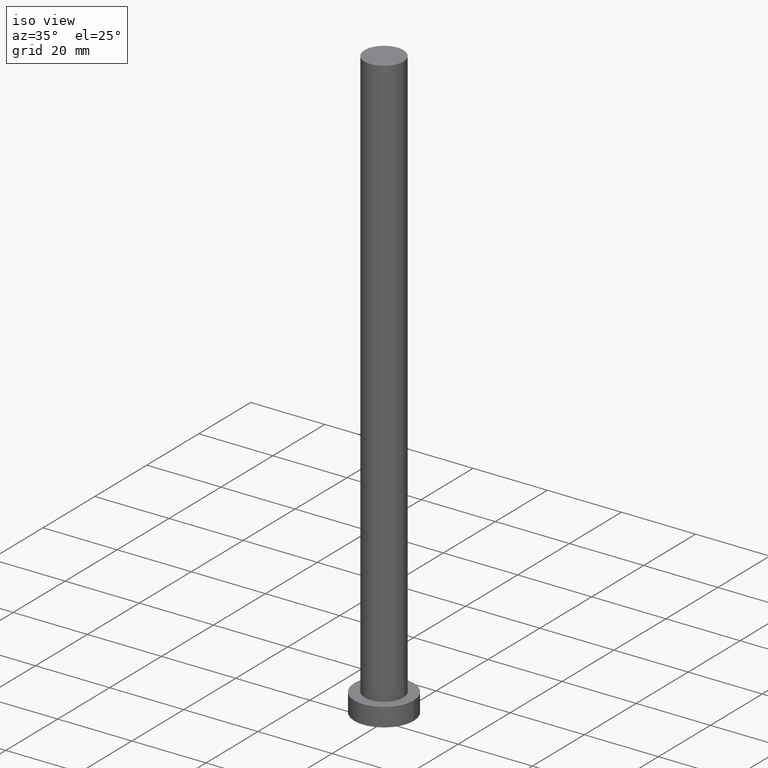
[diagram: clean part render]
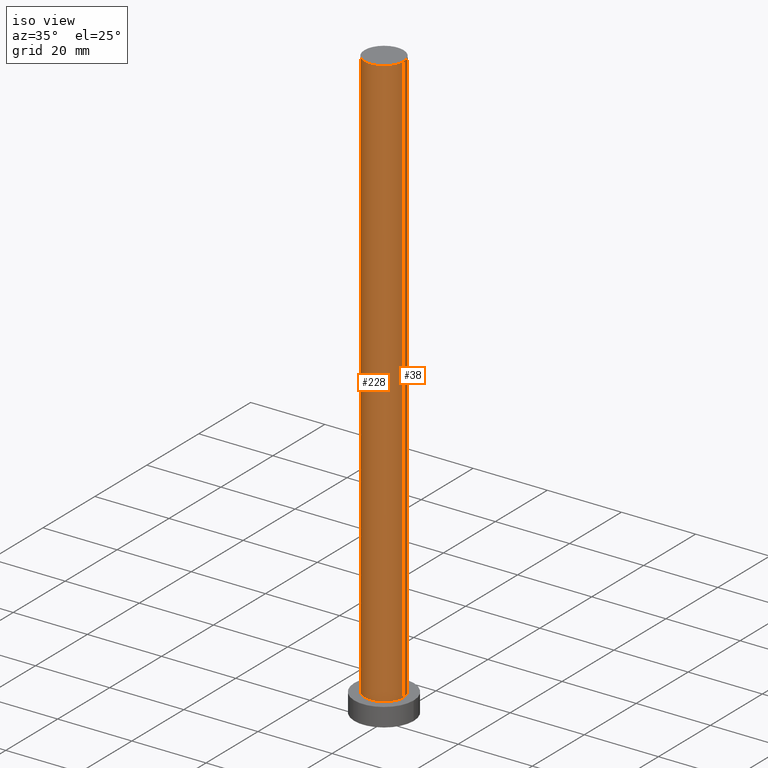
[diagram: same view with one multi-face feature highlighted, each face labeled with its STEP entity id]
A machine part, iso view. The highlighted faces form ONE feature: a constant-radius fillet chain: 2 tangent blend faces with common blend radius 5.25 mm. The faces share edges in the B-rep.
Their STEP definitions:
[1] entity #38 (Cylinder):
#3 = EDGE_CURVE ( 'NONE', #149, #250, #206, .T. ) ;
#4 = CARTESIAN_POINT ( 'NONE',  ( 0.000000000000000000, 0.000000000000000000, 160.0000000000000000 ) ) ;
#7 = CARTESIAN_POINT ( 'NONE',  ( 0.000000000000000000, 0.000000000000000000, 160.0000000000000000 ) ) ;
#11 = DIRECTION ( 'NONE',  ( 0.000000000000000000, 0.000000000000000000, 1.000000000000000000 ) ) ;
#23 = VECTOR ( 'NONE', #144, 1000.000000000000000 ) ;
#26 = CARTESIAN_POINT ( 'NONE',  ( -5.250000000000000888, 0.000000000000000000, 160.0000000000000000 ) ) ;
#31 = ORIENTED_EDGE ( 'NONE', *, *, #78, .F. ) ;
#38 = ADVANCED_FACE ( 'NONE', ( #162 ), #81, .T. ) ;
#47 = CARTESIAN_POINT ( 'NONE',  ( 0.000000000000000000, 0.000000000000000000, 5.000000000000000000 ) ) ;
#50 = AXIS2_PLACEMENT_3D ( 'NONE', #47, #11, #70 ) ;
#54 = VERTEX_POINT ( 'NONE', #219 ) ;
#56 = VERTEX_POINT ( 'NONE', #161 ) ;
#58 = ORIENTED_EDGE ( 'NONE', *, *, #146, .T. ) ;
#66 = DIRECTION ( 'NONE',  ( 1.000000000000000000, 0.000000000000000000, 0.000000000000000000 ) ) ;
#70 = DIRECTION ( 'NONE',  ( 1.000000000000000000, 0.000000000000000000, 0.000000000000000000 ) ) ;
#71 = VECTOR ( 'NONE', #201, 1000.000000000000000 ) ;
#78 = EDGE_CURVE ( 'NONE', #250, #56, #120, .T. ) ;
#79 = CARTESIAN_POINT ( 'NONE',  ( -5.250000000000000888, 0.000000000000000000, 160.0000000000000000 ) ) ;
#81 = CYLINDRICAL_SURFACE ( 'NONE', #243, 5.250000000000000888 ) ;
#105 = CIRCLE ( 'NONE', #50, 5.250000000000000888 ) ;
#116 = DIRECTION ( 'NONE',  ( -1.000000000000000000, 0.000000000000000000, 0.000000000000000000 ) ) ;
#117 = DIRECTION ( 'NONE',  ( -0.000000000000000000, -0.000000000000000000, -1.000000000000000000 ) ) ;
#120 = LINE ( 'NONE', #79, #71 ) ;
#123 = LINE ( 'NONE', #125, #23 ) ;
#125 = CARTESIAN_POINT ( 'NONE',  ( 5.250000000000000888, 6.429395695523605139E-16, 160.0000000000000000 ) ) ;
#144 = DIRECTION ( 'NONE',  ( -0.000000000000000000, -0.000000000000000000, -1.000000000000000000 ) ) ;
#146 = EDGE_CURVE ( 'NONE', #54, #56, #105, .T. ) ;
#149 = VERTEX_POINT ( 'NONE', #166 ) ;
#158 = AXIS2_PLACEMENT_3D ( 'NONE', #4, #180, #66 ) ;
#161 = CARTESIAN_POINT ( 'NONE',  ( -5.250000000000000888, 0.000000000000000000, 5.000000000000000000 ) ) ;
#162 = FACE_OUTER_BOUND ( 'NONE', #223, .T. ) ;
#166 = CARTESIAN_POINT ( 'NONE',  ( 5.250000000000000888, 6.429395695523605139E-16, 160.0000000000000000 ) ) ;
#167 = ORIENTED_EDGE ( 'NONE', *, *, #3, .F. ) ;
#180 = DIRECTION ( 'NONE',  ( 0.000000000000000000, 0.000000000000000000, 1.000000000000000000 ) ) ;
#190 = ORIENTED_EDGE ( 'NONE', *, *, #194, .T. ) ;
#194 = EDGE_CURVE ( 'NONE', #149, #54, #123, .T. ) ;
#201 = DIRECTION ( 'NONE',  ( -0.000000000000000000, -0.000000000000000000, -1.000000000000000000 ) ) ;
#206 = CIRCLE ( 'NONE', #158, 5.250000000000000888 ) ;
#219 = CARTESIAN_POINT ( 'NONE',  ( 5.250000000000000888, 6.429395695523605139E-16, 5.000000000000000000 ) ) ;
#223 = EDGE_LOOP ( 'NONE', ( #167, #190, #58, #31 ) ) ;
#243 = AXIS2_PLACEMENT_3D ( 'NONE', #7, #117, #116 ) ;
#250 = VERTEX_POINT ( 'NONE', #26 ) ;
[2] entity #228 (Cylinder):
#9 = CIRCLE ( 'NONE', #68, 5.250000000000000888 ) ;
#23 = VECTOR ( 'NONE', #144, 1000.000000000000000 ) ;
#26 = CARTESIAN_POINT ( 'NONE',  ( -5.250000000000000888, 0.000000000000000000, 160.0000000000000000 ) ) ;
#27 = CIRCLE ( 'NONE', #181, 5.250000000000000888 ) ;
#28 = EDGE_CURVE ( 'NONE', #56, #54, #27, .T. ) ;
#41 = DIRECTION ( 'NONE',  ( 1.000000000000000000, 0.000000000000000000, 0.000000000000000000 ) ) ;
#44 = CYLINDRICAL_SURFACE ( 'NONE', #159, 5.250000000000000888 ) ;
#45 = DIRECTION ( 'NONE',  ( -1.000000000000000000, 0.000000000000000000, 0.000000000000000000 ) ) ;
#48 = EDGE_CURVE ( 'NONE', #250, #149, #9, .T. ) ;
#54 = VERTEX_POINT ( 'NONE', #219 ) ;
#56 = VERTEX_POINT ( 'NONE', #161 ) ;
#63 = DIRECTION ( 'NONE',  ( 0.000000000000000000, 0.000000000000000000, 1.000000000000000000 ) ) ;
#67 = DIRECTION ( 'NONE',  ( 0.000000000000000000, 0.000000000000000000, 1.000000000000000000 ) ) ;
#68 = AXIS2_PLACEMENT_3D ( 'NONE', #141, #67, #41 ) ;
#71 = VECTOR ( 'NONE', #201, 1000.000000000000000 ) ;
#78 = EDGE_CURVE ( 'NONE', #250, #56, #120, .T. ) ;
#79 = CARTESIAN_POINT ( 'NONE',  ( -5.250000000000000888, 0.000000000000000000, 160.0000000000000000 ) ) ;
#83 = DIRECTION ( 'NONE',  ( 1.000000000000000000, 0.000000000000000000, 0.000000000000000000 ) ) ;
#120 = LINE ( 'NONE', #79, #71 ) ;
#123 = LINE ( 'NONE', #125, #23 ) ;
#125 = CARTESIAN_POINT ( 'NONE',  ( 5.250000000000000888, 6.429395695523605139E-16, 160.0000000000000000 ) ) ;
#141 = CARTESIAN_POINT ( 'NONE',  ( 0.000000000000000000, 0.000000000000000000, 160.0000000000000000 ) ) ;
#144 = DIRECTION ( 'NONE',  ( -0.000000000000000000, -0.000000000000000000, -1.000000000000000000 ) ) ;
#149 = VERTEX_POINT ( 'NONE', #166 ) ;
#157 = ORIENTED_EDGE ( 'NONE', *, *, #48, .F. ) ;
#159 = AXIS2_PLACEMENT_3D ( 'NONE', #204, #207, #45 ) ;
#161 = CARTESIAN_POINT ( 'NONE',  ( -5.250000000000000888, 0.000000000000000000, 5.000000000000000000 ) ) ;
#166 = CARTESIAN_POINT ( 'NONE',  ( 5.250000000000000888, 6.429395695523605139E-16, 160.0000000000000000 ) ) ;
#173 = ORIENTED_EDGE ( 'NONE', *, *, #78, .T. ) ;
#181 = AXIS2_PLACEMENT_3D ( 'NONE', #218, #63, #83 ) ;
#194 = EDGE_CURVE ( 'NONE', #149, #54, #123, .T. ) ;
#201 = DIRECTION ( 'NONE',  ( -0.000000000000000000, -0.000000000000000000, -1.000000000000000000 ) ) ;
#204 = CARTESIAN_POINT ( 'NONE',  ( 0.000000000000000000, 0.000000000000000000, 160.0000000000000000 ) ) ;
#205 = ORIENTED_EDGE ( 'NONE', *, *, #194, .F. ) ;
#207 = DIRECTION ( 'NONE',  ( -0.000000000000000000, -0.000000000000000000, -1.000000000000000000 ) ) ;
#210 = FACE_OUTER_BOUND ( 'NONE', #213, .T. ) ;
#213 = EDGE_LOOP ( 'NONE', ( #205, #157, #173, #255 ) ) ;
#218 = CARTESIAN_POINT ( 'NONE',  ( 0.000000000000000000, 0.000000000000000000, 5.000000000000000000 ) ) ;
#219 = CARTESIAN_POINT ( 'NONE',  ( 5.250000000000000888, 6.429395695523605139E-16, 5.000000000000000000 ) ) ;
#228 = ADVANCED_FACE ( 'NONE', ( #210 ), #44, .T. ) ;
#250 = VERTEX_POINT ( 'NONE', #26 ) ;
#255 = ORIENTED_EDGE ( 'NONE', *, *, #28, .T. ) ;